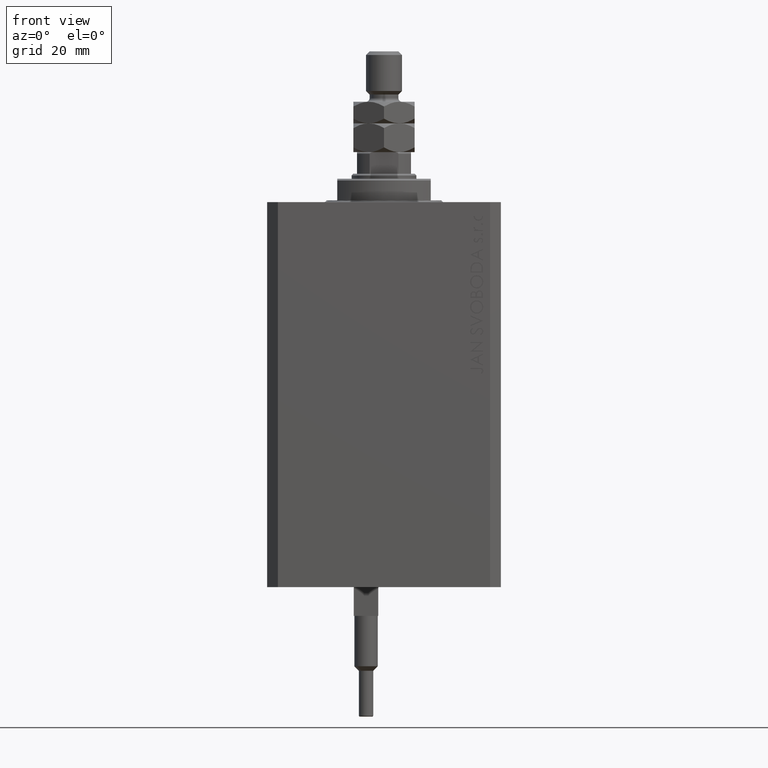
[diagram: clean part render]
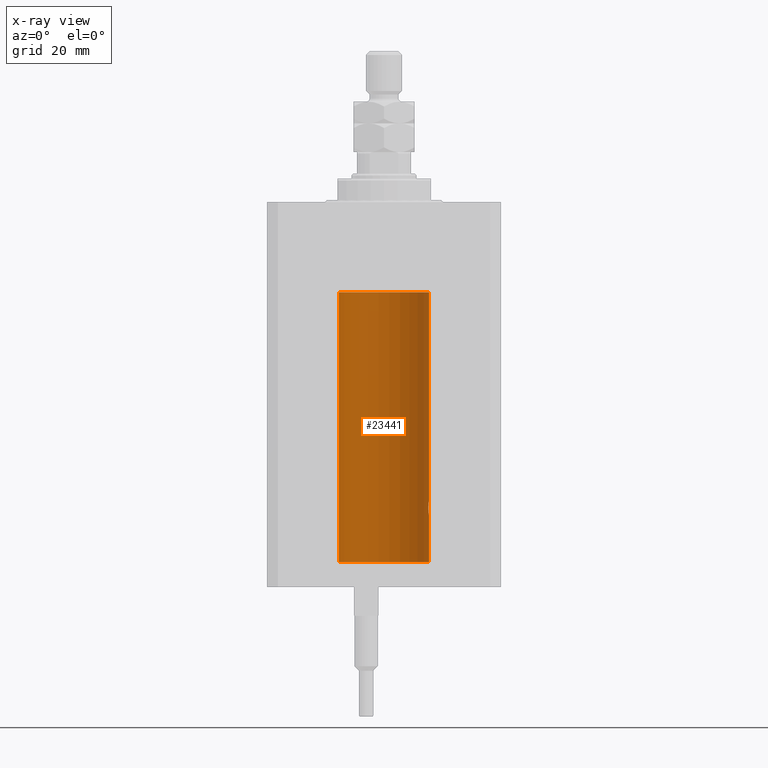
[diagram: x-ray — body ghosted, one internal face saturated and labeled with its STEP entity id]
A machine part, front view, then the same camera in x-ray: the body is ghosted and one INTERNAL B-rep face — a face not visible from any outside direction — is saturated and labeled: STEP entity #23441.
In plain terms, the highlighted cylindrical surface (partial cylindrical patch) has radius 12.5 mm, axis along (0, 0, 1).
Its self-contained STEP definition (entity closure, byte-faithful):
#84 = VECTOR ( 'NONE', #39195, 1000.000000000000000 ) ;
#631 = CARTESIAN_POINT ( 'NONE',  ( 12.50000000000000000, 0.000000000000000000, -25.10000000000000142 ) ) ;
#1250 = CARTESIAN_POINT ( 'NONE',  ( 12.46011632531798874, 1.003644408234883434, -83.26516799687671266 ) ) ;
#1487 = AXIS2_PLACEMENT_3D ( 'NONE', #19552, #46369, #49143 ) ;
#2184 = CARTESIAN_POINT ( 'NONE',  ( 12.39867611624532806, 1.590019252152828910, -83.77984495929609920 ) ) ;
#2428 = CARTESIAN_POINT ( 'NONE',  ( 12.33896267925302581, 2.000000000000247358, -84.86934705949914814 ) ) ;
#2440 = EDGE_CURVE ( 'NONE', #13114, #10073, #35442, .T. ) ;
#2806 = CARTESIAN_POINT ( 'NONE',  ( 12.50000000000000000, 0.000000000000000000, -100.0999999999999943 ) ) ;
#3141 = CARTESIAN_POINT ( 'NONE',  ( 12.50000000000000000, 2.320363022323678888E-15, -87.00000000000000000 ) ) ;
#3334 = CARTESIAN_POINT ( 'NONE',  ( 12.33896267925302759, 2.000000000000247802, -84.99999999999998579 ) ) ;
#4714 = AXIS2_PLACEMENT_3D ( 'NONE', #21891, #14360, #36927 ) ;
#4882 = CARTESIAN_POINT ( 'NONE',  ( 12.50000000000000000, 0.000000000000000000, -100.0999999999999943 ) ) ;
#5952 = CARTESIAN_POINT ( 'NONE',  ( 12.37925647381943506, 1.734744884174218571, -83.99620732598648942 ) ) ;
#6676 = CARTESIAN_POINT ( 'NONE',  ( 12.35520276972935427, 1.897773362058238877, -84.35528278634336630 ) ) ;
#6815 = B_SPLINE_CURVE_WITH_KNOTS ( 'NONE', 3,
 ( #28072, #2428, #35577, #25241, #6676, #40509, #5952, #2184, #40988, #43349, #48527, #1250, #39325, #8778, #21962, #9956, #40749, #16535 ),
 .UNSPECIFIED., .F., .F.,
 ( 4, 2, 2, 2, 2, 2, 2, 2, 4 ),
 ( 0.003132244164174466730, 0.003523586189974241625, 0.003914928215774016521, 0.004306270241573791416, 0.004697612267373566311, 0.005088954293173341206, 0.005480296318973116101, 0.005871638344772890997, 0.006262980370572665892 ),
 .UNSPECIFIED. ) ;
#6856 = CARTESIAN_POINT ( 'NONE',  ( 12.46901623405144122, 0.8878913781257877780, -86.79689651717548315 ) ) ;
#6912 = DIRECTION ( 'NONE',  ( -0.000000000000000000, -0.000000000000000000, 1.000000000000000000 ) ) ;
#7110 = CARTESIAN_POINT ( 'NONE',  ( 0.000000000000000000, 0.000000000000000000, -100.0999999999999943 ) ) ;
#7152 = CARTESIAN_POINT ( 'NONE',  ( -12.50000000000000000, 1.530808498934191521E-15, -100.0999999999999943 ) ) ;
#7193 = EDGE_CURVE ( 'NONE', #10073, #48392, #32926, .T. ) ;
#8778 = CARTESIAN_POINT ( 'NONE',  ( 12.48395395845270528, 0.6446573166014707423, -83.10222124213517247 ) ) ;
#9600 = LINE ( 'NONE', #2806, #24402 ) ;
#9956 = CARTESIAN_POINT ( 'NONE',  ( 12.49788668346399945, 0.2632864803365707607, -83.01308975838333026 ) ) ;
#10073 = VERTEX_POINT ( 'NONE', #3141 ) ;
#10856 = CARTESIAN_POINT ( 'NONE',  ( 12.48989642018887736, 0.5185418732824252919, -86.93601292187604201 ) ) ;
#11100 = CARTESIAN_POINT ( 'NONE',  ( 12.33896267925302759, 2.000000000000248246, -85.26143174220784715 ) ) ;
#11683 = ORIENTED_EDGE ( 'NONE', *, *, #26144, .F. ) ;
#12683 = ORIENTED_EDGE ( 'NONE', *, *, #47596, .T. ) ;
#13114 = VERTEX_POINT ( 'NONE', #17876 ) ;
#14360 = DIRECTION ( 'NONE',  ( 0.000000000000000000, 0.000000000000000000, 1.000000000000000000 ) ) ;
#15097 = CARTESIAN_POINT ( 'NONE',  ( 12.49789833780794446, 0.2625555164371021766, -86.98698170822147802 ) ) ;
#15552 = AXIS2_PLACEMENT_3D ( 'NONE', #7110, #49448, #22393 ) ;
#15720 = CARTESIAN_POINT ( 'NONE',  ( -12.50000000000000000, 1.530808498934191521E-15, -25.10000000000000142 ) ) ;
#15790 = CYLINDRICAL_SURFACE ( 'NONE', #1487, 12.50000000000000000 ) ;
#16535 = CARTESIAN_POINT ( 'NONE',  ( 12.50000000000000000, -7.266276684081261841E-23, -82.99999999999998579 ) ) ;
#17876 = CARTESIAN_POINT ( 'NONE',  ( 12.50000000000000000, 0.000000000000000000, -100.0999999999999943 ) ) ;
#18368 = CARTESIAN_POINT ( 'NONE',  ( 12.46019522898365217, 1.002712894177336223, -86.73540896027598990 ) ) ;
#19253 = ORIENTED_EDGE ( 'NONE', *, *, #27086, .T. ) ;
#19552 = CARTESIAN_POINT ( 'NONE',  ( 0.000000000000000000, 0.000000000000000000, -100.0999999999999943 ) ) ;
#20552 = CARTESIAN_POINT ( 'NONE',  ( 12.33896267925302759, 2.000000000000247802, -84.99999999999998579 ) ) ;
#20844 = CARTESIAN_POINT ( 'NONE',  ( -12.50000000000000000, 1.530808498934191521E-15, -100.0999999999999943 ) ) ;
#21891 = CARTESIAN_POINT ( 'NONE',  ( 0.000000000000000000, 0.000000000000000000, -25.10000000000000142 ) ) ;
#21962 = CARTESIAN_POINT ( 'NONE',  ( 12.48983962833819028, 0.5199974825204898288, -83.06435160808017315 ) ) ;
#22393 = DIRECTION ( 'NONE',  ( 1.000000000000000000, 0.000000000000000000, 0.000000000000000000 ) ) ;
#23211 = VERTEX_POINT ( 'NONE', #46690 ) ;
#23441 = ADVANCED_FACE ( 'NONE', ( #37851 ), #15790, .F. ) ;
#24402 = VECTOR ( 'NONE', #40406, 1000.000000000000000 ) ;
#25241 = CARTESIAN_POINT ( 'NONE',  ( 12.34924836377099844, 1.935649219704934865, -84.48002062127160627 ) ) ;
#26141 = CARTESIAN_POINT ( 'NONE',  ( 12.44079900692650931, 1.220007525301739282, -86.59017579083662497 ) ) ;
#26144 = EDGE_CURVE ( 'NONE', #13114, #43121, #45150, .T. ) ;
#26195 = LINE ( 'NONE', #7152, #39970 ) ;
#26884 = CARTESIAN_POINT ( 'NONE',  ( 12.34779119491631683, 1.947363444907009633, -85.52502775168252924 ) ) ;
#27086 = EDGE_CURVE ( 'NONE', #23211, #45241, #9600, .T. ) ;
#27184 = ORIENTED_EDGE ( 'NONE', *, *, #40721, .T. ) ;
#28072 = CARTESIAN_POINT ( 'NONE',  ( 12.33896267925302759, 2.000000000000247802, -84.99999999999998579 ) ) ;
#28929 = ORIENTED_EDGE ( 'NONE', *, *, #7193, .T. ) ;
#30639 = CARTESIAN_POINT ( 'NONE',  ( 12.48390005916863110, 0.6457215011736527899, -86.89742771554266199 ) ) ;
#32715 = CIRCLE ( 'NONE', #4714, 12.50000000000000000 ) ;
#32926 = B_SPLINE_CURVE_WITH_KNOTS ( 'NONE', 3,
 ( #41170, #42154, #15097, #10856, #30639, #6856, #18368, #26141, #41412, #49439, #37649, #26884, #11100, #3334 ),
 .UNSPECIFIED., .F., .F.,
 ( 4, 2, 2, 2, 2, 2, 4 ),
 ( 2.254408494944823136E-18, 0.0003915305205218102386, 0.0007830610410436180920, 0.001174591561565426108, 0.001566122082087234016, 0.002349183123130850048, 0.003132244164174466730 ),
 .UNSPECIFIED. ) ;
#34456 = EDGE_LOOP ( 'NONE', ( #39966, #11683, #45289, #28929, #12683, #19253, #27184 ) ) ;
#35442 = LINE ( 'NONE', #4882, #84 ) ;
#35577 = CARTESIAN_POINT ( 'NONE',  ( 12.34110728646152388, 1.986893050944454453, -84.73661347764983987 ) ) ;
#36927 = DIRECTION ( 'NONE',  ( 1.000000000000000000, 0.000000000000000000, 0.000000000000000000 ) ) ;
#37649 = CARTESIAN_POINT ( 'NONE',  ( 12.37760587642916477, 1.747868572747719229, -86.00639653169000098 ) ) ;
#37851 = FACE_OUTER_BOUND ( 'NONE', #34456, .T. ) ;
#39195 = DIRECTION ( 'NONE',  ( -0.000000000000000000, -0.000000000000000000, 1.000000000000000000 ) ) ;
#39325 = CARTESIAN_POINT ( 'NONE',  ( 12.46910683544638232, 0.8866026273585037032, -83.20247863689694157 ) ) ;
#39966 = ORIENTED_EDGE ( 'NONE', *, *, #40394, .F. ) ;
#39970 = VECTOR ( 'NONE', #6912, 1000.000000000000000 ) ;
#40394 = EDGE_CURVE ( 'NONE', #43121, #43836, #26195, .T. ) ;
#40406 = DIRECTION ( 'NONE',  ( -0.000000000000000000, -0.000000000000000000, 1.000000000000000000 ) ) ;
#40509 = CARTESIAN_POINT ( 'NONE',  ( 12.37021546997940291, 1.797317011867403114, -84.11295119741077997 ) ) ;
#40721 = EDGE_CURVE ( 'NONE', #45241, #43836, #32715, .T. ) ;
#40749 = CARTESIAN_POINT ( 'NONE',  ( 12.49999999999999822, 0.1306079576516667173, -82.99999999999997158 ) ) ;
#40988 = CARTESIAN_POINT ( 'NONE',  ( 12.40916530024876430, 1.507117913375715990, -83.67865955049002480 ) ) ;
#41170 = CARTESIAN_POINT ( 'NONE',  ( 12.50000000000000000, 2.320363022323678888E-15, -87.00000000000000000 ) ) ;
#41412 = CARTESIAN_POINT ( 'NONE',  ( 12.43016561391612917, 1.322713721413880661, -86.50578877836700542 ) ) ;
#42154 = CARTESIAN_POINT ( 'NONE',  ( 12.50000000000000178, 0.1324055009716466613, -87.00000000000002842 ) ) ;
#43121 = VERTEX_POINT ( 'NONE', #20844 ) ;
#43349 = CARTESIAN_POINT ( 'NONE',  ( 12.43037348241797524, 1.320834183883837554, -83.49243837704291593 ) ) ;
#43836 = VERTEX_POINT ( 'NONE', #15720 ) ;
#45150 = CIRCLE ( 'NONE', #15552, 12.50000000000000000 ) ;
#45241 = VERTEX_POINT ( 'NONE', #631 ) ;
#45289 = ORIENTED_EDGE ( 'NONE', *, *, #2440, .T. ) ;
#46369 = DIRECTION ( 'NONE',  ( -0.000000000000000000, -0.000000000000000000, 1.000000000000000000 ) ) ;
#46690 = CARTESIAN_POINT ( 'NONE',  ( 12.50000000000000000, -7.266276684081261841E-23, -82.99999999999998579 ) ) ;
#47596 = EDGE_CURVE ( 'NONE', #48392, #23211, #6815, .T. ) ;
#48392 = VERTEX_POINT ( 'NONE', #20552 ) ;
#48527 = CARTESIAN_POINT ( 'NONE',  ( 12.44079117518645639, 1.220047488436368122, -83.40989676335082947 ) ) ;
#49143 = DIRECTION ( 'NONE',  ( 1.000000000000000000, 0.000000000000000000, 0.000000000000000000 ) ) ;
#49439 = CARTESIAN_POINT ( 'NONE',  ( 12.39869754437268590, 1.598954131913722820, -86.22932152813008599 ) ) ;
#49448 = DIRECTION ( 'NONE',  ( 0.000000000000000000, 0.000000000000000000, 1.000000000000000000 ) ) ;